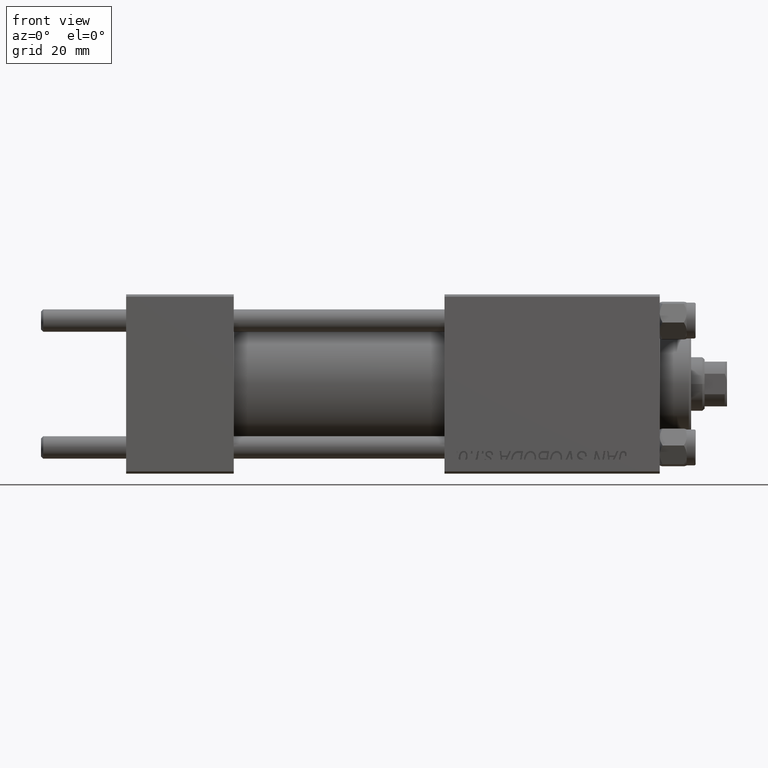
[diagram: clean part render]
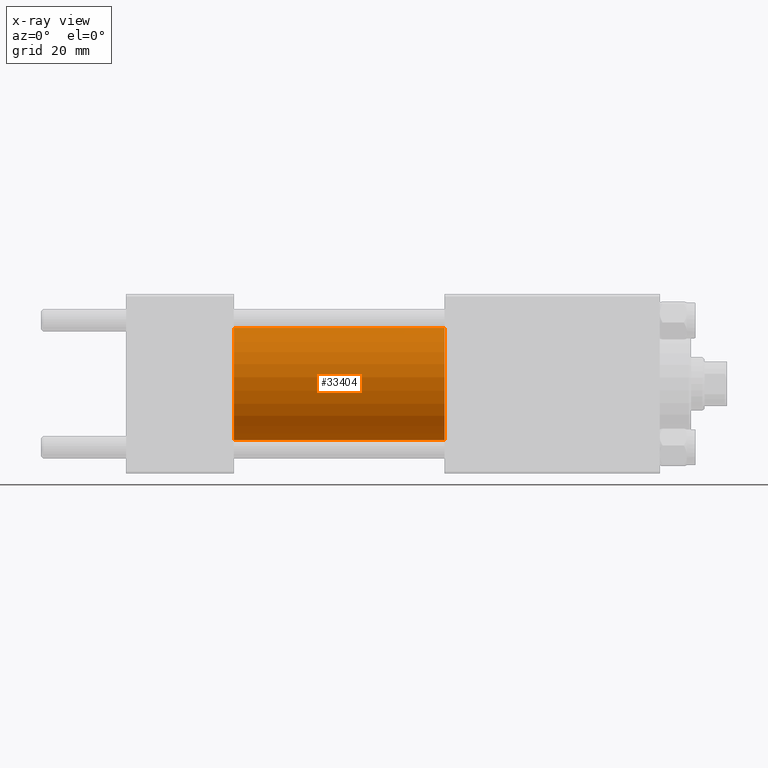
[diagram: x-ray — body ghosted, one internal face saturated and labeled with its STEP entity id]
A machine part, front view, then the same camera in x-ray: the body is ghosted and one INTERNAL B-rep face — a face not visible from any outside direction — is saturated and labeled: STEP entity #33404.
In plain terms, the highlighted cylindrical surface (partial cylindrical patch) has radius 12.5 mm, axis along (-1, -0, -0).
Its self-contained STEP definition (entity closure, byte-faithful):
#329 = CARTESIAN_POINT ( 'NONE',  ( 71.00000000000001421, 0.000000000000000000, 0.000000000000000000 ) ) ;
#1042 = DIRECTION ( 'NONE',  ( 0.000000000000000000, 0.000000000000000000, -1.000000000000000000 ) ) ;
#1558 = EDGE_LOOP ( 'NONE', ( #27361, #3129, #26565, #25514 ) ) ;
#2022 = DIRECTION ( 'NONE',  ( 1.000000000000000000, 0.000000000000000000, 0.000000000000000000 ) ) ;
#3129 = ORIENTED_EDGE ( 'NONE', *, *, #22681, .T. ) ;
#4164 = DIRECTION ( 'NONE',  ( 1.000000000000000000, 0.000000000000000000, 0.000000000000000000 ) ) ;
#4530 = CARTESIAN_POINT ( 'NONE',  ( 24.00000000000000000, 0.000000000000000000, 12.49999999999999645 ) ) ;
#6928 = VERTEX_POINT ( 'NONE', #49842 ) ;
#8362 = CARTESIAN_POINT ( 'NONE',  ( 24.00000000000000000, 1.530808498934191127E-15, -12.49999999999999645 ) ) ;
#9635 = AXIS2_PLACEMENT_3D ( 'NONE', #45833, #4164, #15787 ) ;
#12523 = DIRECTION ( 'NONE',  ( -1.000000000000000000, -0.000000000000000000, -0.000000000000000000 ) ) ;
#15787 = DIRECTION ( 'NONE',  ( 0.000000000000000000, 0.000000000000000000, -1.000000000000000000 ) ) ;
#16218 = DIRECTION ( 'NONE',  ( -1.000000000000000000, -0.000000000000000000, -0.000000000000000000 ) ) ;
#17295 = VECTOR ( 'NONE', #16218, 1000.000000000000000 ) ;
#17648 = VERTEX_POINT ( 'NONE', #4530 ) ;
#19504 = CYLINDRICAL_SURFACE ( 'NONE', #25919, 12.49999999999999645 ) ;
#20042 = CARTESIAN_POINT ( 'NONE',  ( 71.00000000000001421, 0.000000000000000000, 12.49999999999999645 ) ) ;
#20121 = VERTEX_POINT ( 'NONE', #8362 ) ;
#22681 = EDGE_CURVE ( 'NONE', #6928, #20121, #42721, .T. ) ;
#23795 = DIRECTION ( 'NONE',  ( -1.000000000000000000, -0.000000000000000000, -0.000000000000000000 ) ) ;
#24899 = CIRCLE ( 'NONE', #9635, 12.49999999999999645 ) ;
#25336 = CIRCLE ( 'NONE', #38256, 12.49999999999999645 ) ;
#25514 = ORIENTED_EDGE ( 'NONE', *, *, #45841, .F. ) ;
#25919 = AXIS2_PLACEMENT_3D ( 'NONE', #329, #23795, #31114 ) ;
#25979 = EDGE_CURVE ( 'NONE', #46293, #6928, #24899, .T. ) ;
#26565 = ORIENTED_EDGE ( 'NONE', *, *, #42929, .F. ) ;
#27361 = ORIENTED_EDGE ( 'NONE', *, *, #25979, .T. ) ;
#28639 = VECTOR ( 'NONE', #12523, 1000.000000000000000 ) ;
#31114 = DIRECTION ( 'NONE',  ( 0.000000000000000000, 0.000000000000000000, 1.000000000000000000 ) ) ;
#33404 = ADVANCED_FACE ( 'NONE', ( #35154 ), #19504, .F. ) ;
#35154 = FACE_OUTER_BOUND ( 'NONE', #1558, .T. ) ;
#38256 = AXIS2_PLACEMENT_3D ( 'NONE', #47739, #2022, #1042 ) ;
#38934 = CARTESIAN_POINT ( 'NONE',  ( 71.00000000000001421, 1.530808498934191127E-15, -12.49999999999999645 ) ) ;
#39257 = LINE ( 'NONE', #20042, #28639 ) ;
#42721 = LINE ( 'NONE', #38934, #17295 ) ;
#42929 = EDGE_CURVE ( 'NONE', #17648, #20121, #25336, .T. ) ;
#44967 = CARTESIAN_POINT ( 'NONE',  ( 71.00000000000001421, 0.000000000000000000, 12.49999999999999645 ) ) ;
#45833 = CARTESIAN_POINT ( 'NONE',  ( 71.00000000000001421, 0.000000000000000000, 0.000000000000000000 ) ) ;
#45841 = EDGE_CURVE ( 'NONE', #46293, #17648, #39257, .T. ) ;
#46293 = VERTEX_POINT ( 'NONE', #44967 ) ;
#47739 = CARTESIAN_POINT ( 'NONE',  ( 24.00000000000000000, 0.000000000000000000, 0.000000000000000000 ) ) ;
#49842 = CARTESIAN_POINT ( 'NONE',  ( 71.00000000000001421, 1.530808498934191127E-15, -12.49999999999999645 ) ) ;